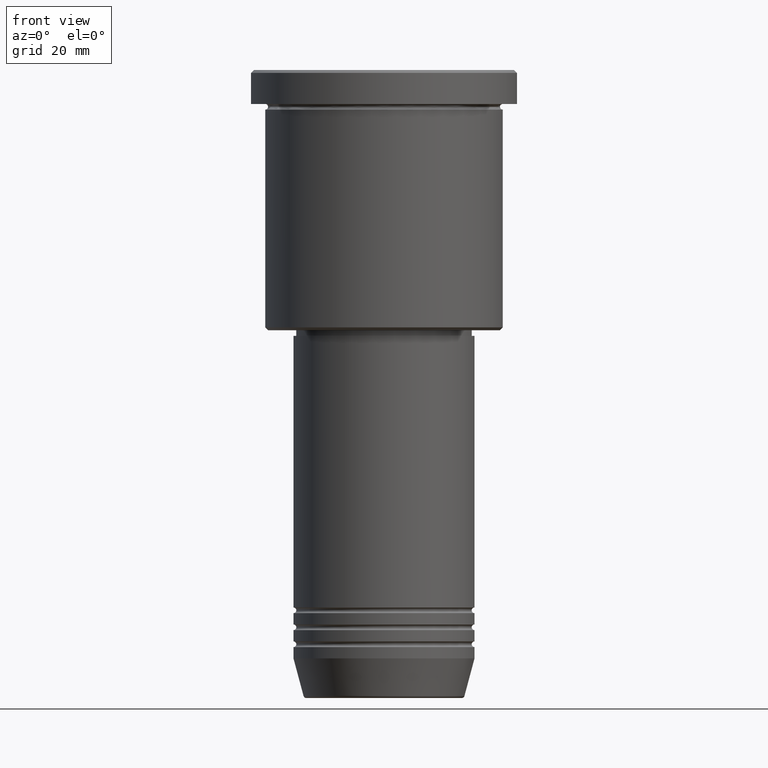
[diagram: clean part render]
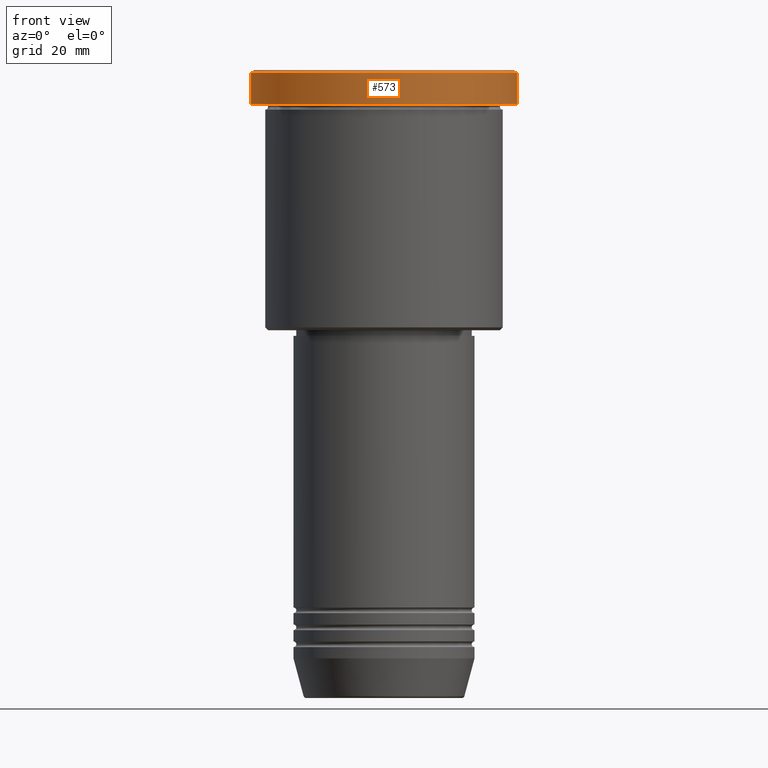
[diagram: same view with one face highlighted and labeled with its STEP entity id]
A machine part, front view. The second image highlights one B-rep face of the part: STEP entity #573.
In plain terms, the highlighted cylindrical surface (partial cylindrical patch) has radius 23.5 mm, axis along (-0, -0, 1).
Its self-contained STEP definition (entity closure, byte-faithful):
#1 = DIRECTION ( 'NONE',  ( -0.000000000000000000, -0.000000000000000000, 1.000000000000000000 ) ) ;
#6 = EDGE_CURVE ( 'NONE', #1026, #1150, #450, .T. ) ;
#69 = ORIENTED_EDGE ( 'NONE', *, *, #428, .T. ) ;
#81 = VERTEX_POINT ( 'NONE', #459 ) ;
#115 = AXIS2_PLACEMENT_3D ( 'NONE', #748, #1111, #940 ) ;
#151 = CIRCLE ( 'NONE', #1154, 23.50000000000000000 ) ;
#195 = EDGE_LOOP ( 'NONE', ( #273, #528, #603, #69 ) ) ;
#196 = CYLINDRICAL_SURFACE ( 'NONE', #983, 23.50000000000000000 ) ;
#201 = LINE ( 'NONE', #846, #594 ) ;
#272 = EDGE_CURVE ( 'NONE', #81, #1026, #606, .T. ) ;
#273 = ORIENTED_EDGE ( 'NONE', *, *, #545, .F. ) ;
#397 = CARTESIAN_POINT ( 'NONE',  ( -23.50000000000000000, 2.877919977996280320E-15, -0.4999999999999865663 ) ) ;
#428 = EDGE_CURVE ( 'NONE', #1150, #1033, #151, .T. ) ;
#450 = LINE ( 'NONE', #556, #855 ) ;
#459 = CARTESIAN_POINT ( 'NONE',  ( -23.50000000000000000, 2.877919977996280320E-15, -5.999999999999994671 ) ) ;
#468 = CARTESIAN_POINT ( 'NONE',  ( 0.000000000000000000, 0.000000000000000000, 0.000000000000000000 ) ) ;
#474 = DIRECTION ( 'NONE',  ( -0.000000000000000000, -0.000000000000000000, 1.000000000000000000 ) ) ;
#487 = CARTESIAN_POINT ( 'NONE',  ( 23.50000000000000000, 0.000000000000000000, -5.999999999999994671 ) ) ;
#505 = CARTESIAN_POINT ( 'NONE',  ( 23.50000000000000000, 0.000000000000000000, -0.4999999999999865663 ) ) ;
#528 = ORIENTED_EDGE ( 'NONE', *, *, #272, .T. ) ;
#545 = EDGE_CURVE ( 'NONE', #81, #1033, #201, .T. ) ;
#550 = DIRECTION ( 'NONE',  ( 0.000000000000000000, 0.000000000000000000, -1.000000000000000000 ) ) ;
#556 = CARTESIAN_POINT ( 'NONE',  ( 23.50000000000000000, 0.000000000000000000, 0.000000000000000000 ) ) ;
#572 = FACE_OUTER_BOUND ( 'NONE', #195, .T. ) ;
#573 = ADVANCED_FACE ( 'NONE', ( #572 ), #196, .T. ) ;
#594 = VECTOR ( 'NONE', #735, 1000.000000000000000 ) ;
#603 = ORIENTED_EDGE ( 'NONE', *, *, #6, .T. ) ;
#606 = CIRCLE ( 'NONE', #115, 23.50000000000000000 ) ;
#674 = CARTESIAN_POINT ( 'NONE',  ( 0.000000000000000000, 0.000000000000000000, -0.4999999999999865663 ) ) ;
#735 = DIRECTION ( 'NONE',  ( -0.000000000000000000, -0.000000000000000000, 1.000000000000000000 ) ) ;
#748 = CARTESIAN_POINT ( 'NONE',  ( 0.000000000000000000, 0.000000000000000000, -5.999999999999994671 ) ) ;
#765 = DIRECTION ( 'NONE',  ( 1.000000000000000000, 0.000000000000000000, 0.000000000000000000 ) ) ;
#846 = CARTESIAN_POINT ( 'NONE',  ( -23.50000000000000000, 2.877919977996280320E-15, 0.000000000000000000 ) ) ;
#855 = VECTOR ( 'NONE', #1, 1000.000000000000000 ) ;
#940 = DIRECTION ( 'NONE',  ( 1.000000000000000000, 0.000000000000000000, 0.000000000000000000 ) ) ;
#983 = AXIS2_PLACEMENT_3D ( 'NONE', #468, #474, #1121 ) ;
#1026 = VERTEX_POINT ( 'NONE', #487 ) ;
#1033 = VERTEX_POINT ( 'NONE', #397 ) ;
#1111 = DIRECTION ( 'NONE',  ( -0.000000000000000000, -0.000000000000000000, 1.000000000000000000 ) ) ;
#1121 = DIRECTION ( 'NONE',  ( 1.000000000000000000, 0.000000000000000000, 0.000000000000000000 ) ) ;
#1150 = VERTEX_POINT ( 'NONE', #505 ) ;
#1154 = AXIS2_PLACEMENT_3D ( 'NONE', #674, #550, #765 ) ;